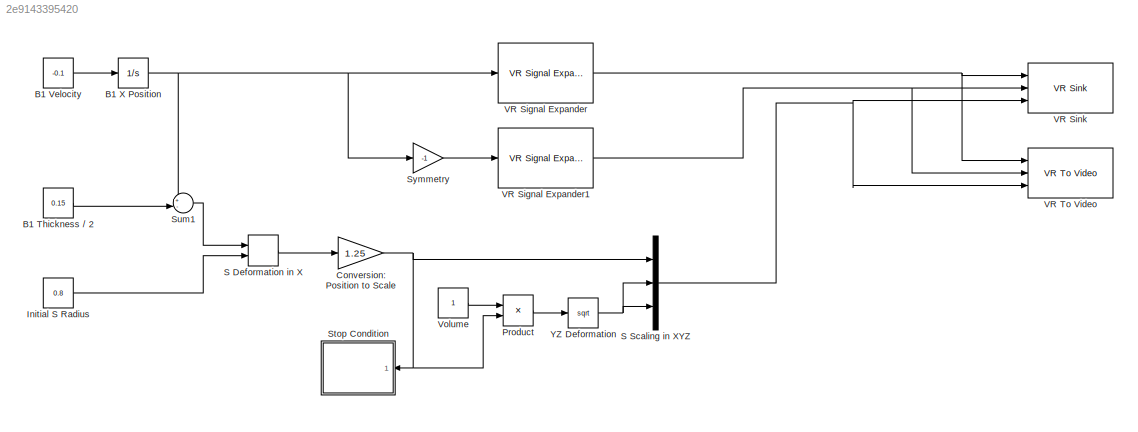
MODEL slx_2e9143395420
KIND model
CONFIG AbsTol = auto
CONFIG EnableMultiTasking = on
CONFIG FixedStep = auto
CONFIG MaxStep = auto
CONFIG MinStep = auto
CONFIG RelTol = 1e-3
CONFIG SampleTimeConstraint = Unconstrained
CONFIG Solver = ode45
CONFIG SolverName = ode45
CONFIG StartTime = 0.0
CONFIG StopTime = Inf
BLOCK [Constant] B1 Thickness // 2
  Value = 0.15
BLOCK [Constant] B1 Velocity
  Value = -0.1
BLOCK [Integrator] B1 X Position
  InitialCondition = 3
  LowerSaturationLimit = -Inf
  Ports = [1, 1]
  UpperSaturationLimit = Inf
BLOCK [Gain] Conversion: Position to Scale
  Gain = 1.25
BLOCK [Constant] Initial S Radius
  Value = 0.8
BLOCK [Product] Product
  Inputs = */
  Ports = [2, 1]
BLOCK [MinMax] S Deformation in X 
  Inputs = 2
  Ports = [2, 1]
BLOCK [Mux] S Scaling in XYZ
  DisplayOption = bar
  Inputs = 3
  Ports = [3, 1]
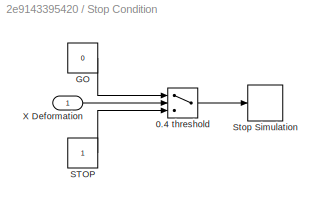
BLOCK [SubSystem] Stop Condition
  Ports = [1]
  RequestExecContextInheritance = off
BLOCK [Switch] Stop Condition/0.4 threshold
  Threshold = 0.4
BLOCK [Constant] Stop Condition/GO
  Value = 0
BLOCK [Constant] Stop Condition/STOP
BLOCK [Stop] Stop Condition/Stop Simulation
BLOCK [Inport] Stop Condition/X Deformation
  IconDisplay = Port number
BLOCK [Sum] Sum1
  IconShape = round
  Inputs = +-|
  Ports = [2, 1]
BLOCK [Gain] Symmetry
  Gain = -1
BLOCK [Reference] VR Signal Expander  REF=vrlib/VR Signal Expander
  Ports = [1, 1]
  SourceBlock = vrlib/VR Signal Expander
  SourceProductBaseCode = VR
  SourceProductName = Simulink 3D Animation
  SourceType = VR Signal Expander
BLOCK [Reference] VR Signal Expander1  REF=vrlib/VR Signal Expander
  Ports = [1, 1]
  SourceBlock = vrlib/VR Signal Expander
  SourceProductBaseCode = VR
  SourceProductName = Simulink 3D Animation
  SourceType = VR Signal Expander
BLOCK [Reference] VR Sink  REF=vrlib/VR Sink
  InstantiateOnLoad = on
  Ports = [3]
  SourceBlock = vrlib/VR Sink
  SourceProductBaseCode = VR
  SourceProductName = Simulink 3D Animation
  SourceType = Virtual Reality Sink
BLOCK [Reference] VR To Video  REF=vrlib/VR To Video
  InstantiateOnLoad = on
  Ports = [3, 1]
  SourceBlock = vrlib/VR To Video
  SourceProductBaseCode = VR
  SourceProductName = Simulink 3D Animation
  SourceType = Virtual Reality Sink
BLOCK [Constant] Volume
BLOCK [Math] YZ Deformation
  Operator = sqrt
  Ports = [1, 1]
LINE B1 Thickness // 2:1 -> Sum1:2
LINE B1 Velocity:1 -> B1 X Position:1
NET B1 X Position:1 -> Sum1:1, Symmetry:1, VR Signal Expander:1
NET Conversion: Position to Scale:1 -> Product:2, S Scaling in XYZ:1, Stop Condition:1
LINE Initial S Radius:1 -> S Deformation in X :2
LINE Product:1 -> YZ Deformation:1
LINE S Deformation in X :1 -> Conversion: Position to Scale:1
NET S Scaling in XYZ:1 -> VR Sink:3, VR To Video:3
LINE Stop Condition/0.4 threshold:1 -> Stop Condition/Stop Simulation:1
LINE Stop Condition/GO:1 -> Stop Condition/0.4 threshold:1
LINE Stop Condition/STOP:1 -> Stop Condition/0.4 threshold:3
LINE Stop Condition/X Deformation:1 -> Stop Condition/0.4 threshold:2
LINE Sum1:1 -> S Deformation in X :1
LINE Symmetry:1 -> VR Signal Expander1:1
NET VR Signal Expander1:1 -> VR Sink:2, VR To Video:2
NET VR Signal Expander:1 -> VR Sink:1, VR To Video:1
LINE Volume:1 -> Product:1
NET YZ Deformation:1 -> S Scaling in XYZ:2, S Scaling in XYZ:3
note: NET lines group one-source signal fan-out (src -> all destinations, sorted); 1:1 wires keep LINE
